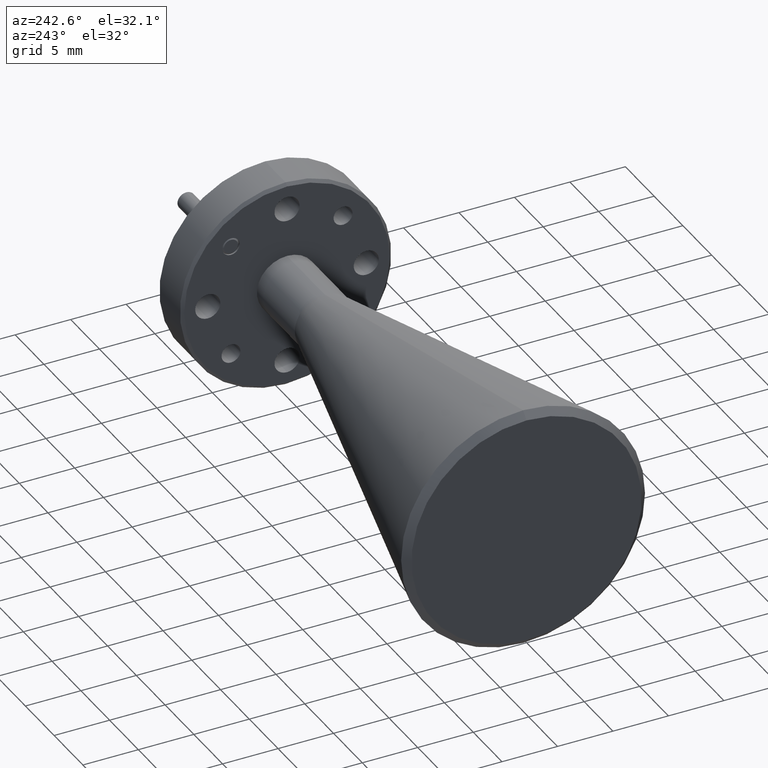
[diagram: clean part render]
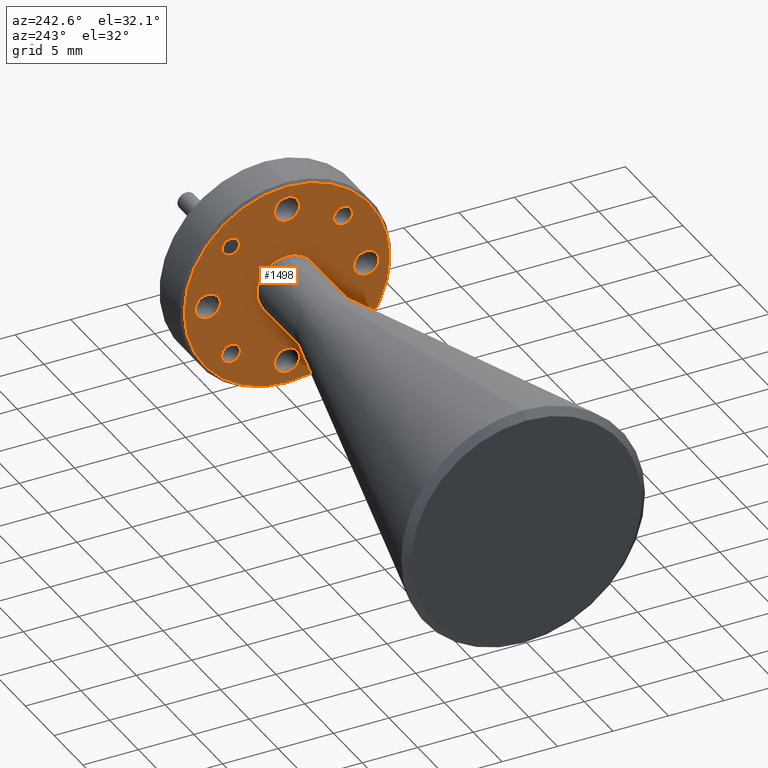
[diagram: same view with one face highlighted and labeled with its STEP entity id]
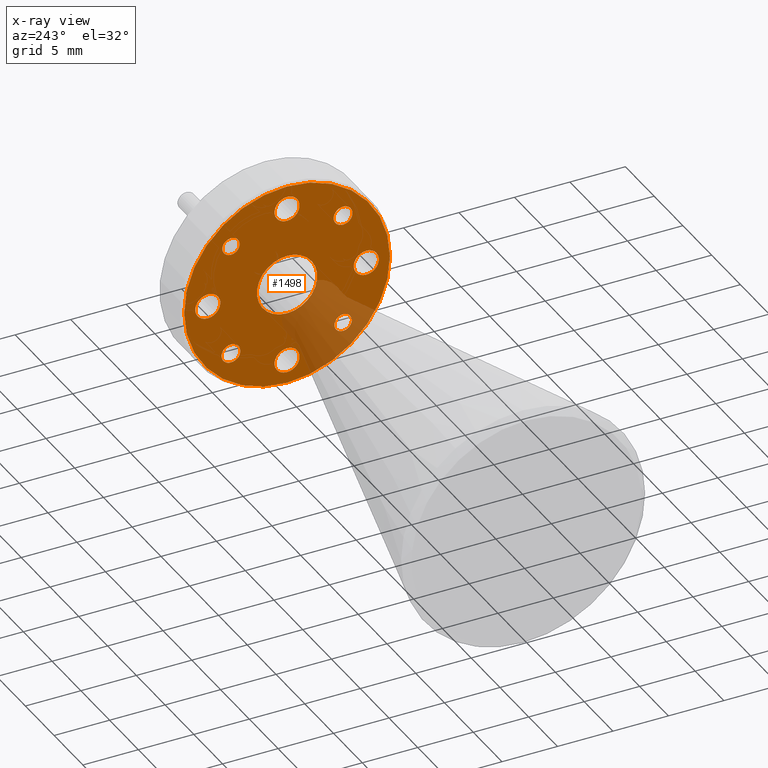
[diagram: x-ray of the same camera — body ghosted, the highlighted face saturated]
A machine part, auxiliary view. The second image highlights one B-rep face of the part: STEP entity #1498.
The next image is the same camera in x-ray: the body ghosted, the highlighted face saturated — about 17% of this face is hidden behind the body in this view.
In plain terms, the highlighted planar face has unit normal (-1, 0, 0).
Its self-contained STEP definition (entity closure, byte-faithful):
#3 = EDGE_CURVE ( 'NONE', #1685, #1463, #561, .T. ) ;
#9 = AXIS2_PLACEMENT_3D ( 'NONE', #1150, #1728, #2273 ) ;
#17 = CARTESIAN_POINT ( 'NONE',  ( -5.318961933510678364, 1.217303930725912142, 2.370213308989429724 ) ) ;
#20 = ORIENTED_EDGE ( 'NONE', *, *, #848, .T. ) ;
#30 = EDGE_LOOP ( 'NONE', ( #458, #1762 ) ) ;
#48 = DIRECTION ( 'NONE',  ( -1.000000000000000000, 0.000000000000000000, 0.000000000000000000 ) ) ;
#74 = EDGE_CURVE ( 'NONE', #1628, #499, #148, .T. ) ;
#83 = DIRECTION ( 'NONE',  ( 1.000000000000000000, -0.000000000000000000, -0.000000000000000000 ) ) ;
#113 = EDGE_LOOP ( 'NONE', ( #262, #435 ) ) ;
#123 = AXIS2_PLACEMENT_3D ( 'NONE', #2201, #739, #1451 ) ;
#128 = CARTESIAN_POINT ( 'NONE',  ( -5.318961933510678364, 1.018430148517194711, 2.202089526780714124 ) ) ;
#131 = DIRECTION ( 'NONE',  ( 1.000000000000000000, -0.000000000000000000, -0.000000000000000000 ) ) ;
#143 = CIRCLE ( 'NONE', #527, 0.03350000000000006445 ) ;
#148 = CIRCLE ( 'NONE', #450, 0.04450000000000003259 ) ;
#156 = AXIS2_PLACEMENT_3D ( 'NONE', #1923, #1741, #676 ) ;
#174 = EDGE_CURVE ( 'NONE', #682, #2107, #2193, .T. ) ;
#204 = CARTESIAN_POINT ( 'NONE',  ( -5.318961933510678364, 1.217303930725912142, 2.005213308989429510 ) ) ;
#213 = EDGE_CURVE ( 'NONE', #2230, #1565, #1737, .T. ) ;
#218 = CARTESIAN_POINT ( 'NONE',  ( -5.318961933510678364, 1.416177712934628463, 2.171339526780712958 ) ) ;
#219 = CIRCLE ( 'NONE', #156, 0.03350000000000006445 ) ;
#226 = CIRCLE ( 'NONE', #2067, 0.03074999999999966649 ) ;
#231 = DIRECTION ( 'NONE',  ( -1.000000000000000000, 0.000000000000000000, 0.000000000000000000 ) ) ;
#235 = EDGE_LOOP ( 'NONE', ( #1033, #1044 ) ) ;
#241 = DIRECTION ( 'NONE',  ( 0.000000000000000000, 0.000000000000000000, 1.000000000000000000 ) ) ;
#257 = DIRECTION ( 'NONE',  ( -1.000000000000000000, 0.000000000000000000, 0.000000000000000000 ) ) ;
#262 = ORIENTED_EDGE ( 'NONE', *, *, #320, .T. ) ;
#280 = CARTESIAN_POINT ( 'NONE',  ( -5.318961933510678364, 1.498553930725912364, 2.325713308989429517 ) ) ;
#282 = DIRECTION ( 'NONE',  ( -1.000000000000000000, 0.000000000000000000, 0.000000000000000000 ) ) ;
#287 = AXIS2_PLACEMENT_3D ( 'NONE', #831, #455, #415 ) ;
#290 = EDGE_LOOP ( 'NONE', ( #1789, #761 ) ) ;
#320 = EDGE_CURVE ( 'NONE', #1463, #1685, #1584, .T. ) ;
#323 = VERTEX_POINT ( 'NONE', #886 ) ;
#326 = VERTEX_POINT ( 'NONE', #1423 ) ;
#327 = CARTESIAN_POINT ( 'NONE',  ( -5.318961933510678364, 1.416177712934629795, 2.569087091198145156 ) ) ;
#330 = AXIS2_PLACEMENT_3D ( 'NONE', #650, #231, #2249 ) ;
#373 = CARTESIAN_POINT ( 'NONE',  ( -5.318961933510678364, 1.217303930725912142, 2.606963308989429962 ) ) ;
#376 = CIRCLE ( 'NONE', #9, 0.3650000000000000466 ) ;
#406 = ORIENTED_EDGE ( 'NONE', *, *, #893, .T. ) ;
#415 = DIRECTION ( 'NONE',  ( 0.000000000000000000, 0.000000000000000000, -1.000000000000000000 ) ) ;
#427 = DIRECTION ( 'NONE',  ( 0.000000000000000000, 0.000000000000000000, -1.000000000000000000 ) ) ;
#428 = CIRCLE ( 'NONE', #2251, 0.03350000000000006445 ) ;
#435 = ORIENTED_EDGE ( 'NONE', *, *, #3, .T. ) ;
#444 = AXIS2_PLACEMENT_3D ( 'NONE', #453, #282, #620 ) ;
#450 = AXIS2_PLACEMENT_3D ( 'NONE', #1061, #1609, #1821 ) ;
#453 = CARTESIAN_POINT ( 'NONE',  ( -5.318961933510678364, 1.217303930725912142, 2.370213308989429724 ) ) ;
#455 = DIRECTION ( 'NONE',  ( 1.000000000000000000, -0.000000000000000000, -0.000000000000000000 ) ) ;
#458 = ORIENTED_EDGE ( 'NONE', *, *, #1110, .F. ) ;
#467 = CARTESIAN_POINT ( 'NONE',  ( -5.318961933510678364, 1.018430148517196043, 2.569087091198146489 ) ) ;
#470 = CIRCLE ( 'NONE', #904, 0.04450000000000003259 ) ;
#477 = FACE_BOUND ( 'NONE', #906, .T. ) ;
#499 = VERTEX_POINT ( 'NONE', #1277 ) ;
#504 = CARTESIAN_POINT ( 'NONE',  ( -5.318961933510678364, 1.498553930725912364, 2.370213308989429724 ) ) ;
#510 = CARTESIAN_POINT ( 'NONE',  ( -5.318961933510678364, 1.592303930725912142, 2.370213308989429724 ) ) ;
#522 = DIRECTION ( 'NONE',  ( 0.000000000000000000, 0.000000000000000000, 1.000000000000000000 ) ) ;
#527 = AXIS2_PLACEMENT_3D ( 'NONE', #467, #632, #241 ) ;
#561 = CIRCLE ( 'NONE', #2016, 0.04450000000000003259 ) ;
#569 = CARTESIAN_POINT ( 'NONE',  ( -5.318961933510678364, 1.217303930725912142, 2.370213308989429724 ) ) ;
#583 = ORIENTED_EDGE ( 'NONE', *, *, #1755, .F. ) ;
#585 = VERTEX_POINT ( 'NONE', #2075 ) ;
#615 = VERTEX_POINT ( 'NONE', #1857 ) ;
#616 = AXIS2_PLACEMENT_3D ( 'NONE', #1630, #1116, #1473 ) ;
#620 = DIRECTION ( 'NONE',  ( 0.000000000000000000, 0.000000000000000000, 1.000000000000000000 ) ) ;
#632 = DIRECTION ( 'NONE',  ( -1.000000000000000000, 0.000000000000000000, 0.000000000000000000 ) ) ;
#650 = CARTESIAN_POINT ( 'NONE',  ( -5.318961933510678364, 1.018430148517194711, 2.171339526780714291 ) ) ;
#662 = CIRCLE ( 'NONE', #616, 0.04450000000000003259 ) ;
#673 = FACE_BOUND ( 'NONE', #1905, .T. ) ;
#676 = DIRECTION ( 'NONE',  ( 0.000000000000000000, 0.000000000000000000, 1.000000000000000000 ) ) ;
#682 = VERTEX_POINT ( 'NONE', #128 ) ;
#706 = AXIS2_PLACEMENT_3D ( 'NONE', #327, #1070, #1792 ) ;
#725 = CARTESIAN_POINT ( 'NONE',  ( -5.318961933510678364, 1.498553930725912364, 2.414713308989429930 ) ) ;
#739 = DIRECTION ( 'NONE',  ( -1.000000000000000000, 0.000000000000000000, 0.000000000000000000 ) ) ;
#761 = ORIENTED_EDGE ( 'NONE', *, *, #1235, .T. ) ;
#776 = ORIENTED_EDGE ( 'NONE', *, *, #174, .F. ) ;
#796 = VERTEX_POINT ( 'NONE', #1253 ) ;
#798 = VERTEX_POINT ( 'NONE', #1989 ) ;
#809 = VERTEX_POINT ( 'NONE', #2343 ) ;
#828 = FACE_BOUND ( 'NONE', #290, .T. ) ;
#830 = DIRECTION ( 'NONE',  ( 0.000000000000000000, 0.000000000000000000, -1.000000000000000000 ) ) ;
#831 = CARTESIAN_POINT ( 'NONE',  ( -5.318961933510678364, 1.217303930725912142, 2.651463308989429724 ) ) ;
#844 = EDGE_CURVE ( 'NONE', #1879, #796, #1927, .T. ) ;
#848 = EDGE_CURVE ( 'NONE', #1565, #2230, #470, .T. ) ;
#852 = EDGE_CURVE ( 'NONE', #323, #798, #2214, .T. ) ;
#860 = DIRECTION ( 'NONE',  ( 0.000000000000000000, 0.000000000000000000, -1.000000000000000000 ) ) ;
#880 = DIRECTION ( 'NONE',  ( -1.000000000000000000, 0.000000000000000000, 0.000000000000000000 ) ) ;
#886 = CARTESIAN_POINT ( 'NONE',  ( -5.318961933510678364, 1.416177712934628463, 2.204839526780713044 ) ) ;
#893 = EDGE_CURVE ( 'NONE', #1259, #2205, #376, .T. ) ;
#904 = AXIS2_PLACEMENT_3D ( 'NONE', #1305, #2237, #830 ) ;
#906 = EDGE_LOOP ( 'NONE', ( #1717, #20 ) ) ;
#922 = DIRECTION ( 'NONE',  ( 1.000000000000000000, -0.000000000000000000, -0.000000000000000000 ) ) ;
#938 = ORIENTED_EDGE ( 'NONE', *, *, #1866, .T. ) ;
#952 = DIRECTION ( 'NONE',  ( 0.000000000000000000, 0.000000000000000000, -1.000000000000000000 ) ) ;
#966 = CARTESIAN_POINT ( 'NONE',  ( -5.318961933510678364, 1.217303930725912142, 2.695963308989429930 ) ) ;
#998 = DIRECTION ( 'NONE',  ( 0.000000000000000000, 0.000000000000000000, -1.000000000000000000 ) ) ;
#1033 = ORIENTED_EDGE ( 'NONE', *, *, #1680, .F. ) ;
#1036 = FACE_OUTER_BOUND ( 'NONE', #1106, .T. ) ;
#1042 = EDGE_LOOP ( 'NONE', ( #2294, #583 ) ) ;
#1044 = ORIENTED_EDGE ( 'NONE', *, *, #1933, .F. ) ;
#1056 = FACE_BOUND ( 'NONE', #30, .T. ) ;
#1061 = CARTESIAN_POINT ( 'NONE',  ( -5.318961933510678364, 0.9360539307259121422, 2.370213308989429724 ) ) ;
#1070 = DIRECTION ( 'NONE',  ( -1.000000000000000000, 0.000000000000000000, 0.000000000000000000 ) ) ;
#1090 = DIRECTION ( 'NONE',  ( -1.000000000000000000, 0.000000000000000000, 0.000000000000000000 ) ) ;
#1093 = AXIS2_PLACEMENT_3D ( 'NONE', #218, #257, #1548 ) ;
#1106 = EDGE_LOOP ( 'NONE', ( #406, #1695 ) ) ;
#1110 = EDGE_CURVE ( 'NONE', #798, #323, #219, .T. ) ;
#1116 = DIRECTION ( 'NONE',  ( 1.000000000000000000, -0.000000000000000000, -0.000000000000000000 ) ) ;
#1118 = DIRECTION ( 'NONE',  ( 1.000000000000000000, -0.000000000000000000, -0.000000000000000000 ) ) ;
#1150 = CARTESIAN_POINT ( 'NONE',  ( -5.318961933510678364, 1.217303930725912142, 2.370213308989429724 ) ) ;
#1156 = CIRCLE ( 'NONE', #123, 0.03074999999999966649 ) ;
#1177 = AXIS2_PLACEMENT_3D ( 'NONE', #504, #131, #860 ) ;
#1194 = VERTEX_POINT ( 'NONE', #2002 ) ;
#1232 = EDGE_CURVE ( 'NONE', #326, #809, #1998, .T. ) ;
#1234 = CARTESIAN_POINT ( 'NONE',  ( -5.318961933510678364, 1.018430148517196043, 2.569087091198146489 ) ) ;
#1235 = EDGE_CURVE ( 'NONE', #796, #1879, #662, .T. ) ;
#1240 = DIRECTION ( 'NONE',  ( 0.000000000000000000, 0.000000000000000000, 1.000000000000000000 ) ) ;
#1253 = CARTESIAN_POINT ( 'NONE',  ( -5.318961933510678364, 1.217303930725912142, 2.133463308989429486 ) ) ;
#1259 = VERTEX_POINT ( 'NONE', #204 ) ;
#1277 = CARTESIAN_POINT ( 'NONE',  ( -5.318961933510678364, 0.9360539307259121422, 2.325713308989429517 ) ) ;
#1301 = CARTESIAN_POINT ( 'NONE',  ( -5.318961933510678364, 1.217303930725912142, 2.735213308989429937 ) ) ;
#1305 = CARTESIAN_POINT ( 'NONE',  ( -5.318961933510678364, 1.217303930725912142, 2.651463308989429724 ) ) ;
#1310 = EDGE_LOOP ( 'NONE', ( #1635, #776 ) ) ;
#1364 = VERTEX_POINT ( 'NONE', #2210 ) ;
#1418 = FACE_BOUND ( 'NONE', #1042, .T. ) ;
#1423 = CARTESIAN_POINT ( 'NONE',  ( -5.318961933510678364, 1.217303930725912142, 2.263213308989429962 ) ) ;
#1432 = CARTESIAN_POINT ( 'NONE',  ( -5.318961933510678364, 0.9360539307259121422, 2.414713308989429930 ) ) ;
#1438 = DIRECTION ( 'NONE',  ( 0.000000000000000000, 0.000000000000000000, -1.000000000000000000 ) ) ;
#1451 = DIRECTION ( 'NONE',  ( 0.000000000000000000, 0.000000000000000000, 1.000000000000000000 ) ) ;
#1463 = VERTEX_POINT ( 'NONE', #280 ) ;
#1470 = CIRCLE ( 'NONE', #444, 0.3650000000000000466 ) ;
#1473 = DIRECTION ( 'NONE',  ( 0.000000000000000000, 0.000000000000000000, -1.000000000000000000 ) ) ;
#1476 = CARTESIAN_POINT ( 'NONE',  ( -5.318961933510678364, 1.217303930725912142, 2.044463308989429517 ) ) ;
#1488 = AXIS2_PLACEMENT_3D ( 'NONE', #1520, #83, #998 ) ;
#1498 = ADVANCED_FACE ( 'NONE', ( #1036, #1056, #1418, #2146, #1959, #1578, #477, #1735, #828, #673 ), #1556, .T. ) ;
#1520 = CARTESIAN_POINT ( 'NONE',  ( -5.318961933510678364, 1.217303930725912142, 2.088963308989429724 ) ) ;
#1548 = DIRECTION ( 'NONE',  ( 0.000000000000000000, 0.000000000000000000, 1.000000000000000000 ) ) ;
#1556 = PLANE ( 'NONE',  #1836 ) ;
#1565 = VERTEX_POINT ( 'NONE', #966 ) ;
#1575 = EDGE_CURVE ( 'NONE', #2107, #682, #226, .T. ) ;
#1578 = FACE_BOUND ( 'NONE', #113, .T. ) ;
#1584 = CIRCLE ( 'NONE', #1177, 0.04450000000000003259 ) ;
#1604 = CIRCLE ( 'NONE', #706, 0.03074999999999966649 ) ;
#1609 = DIRECTION ( 'NONE',  ( 1.000000000000000000, -0.000000000000000000, -0.000000000000000000 ) ) ;
#1628 = VERTEX_POINT ( 'NONE', #1432 ) ;
#1630 = CARTESIAN_POINT ( 'NONE',  ( -5.318961933510678364, 1.217303930725912142, 2.088963308989429724 ) ) ;
#1635 = ORIENTED_EDGE ( 'NONE', *, *, #1575, .F. ) ;
#1665 = CARTESIAN_POINT ( 'NONE',  ( -5.318961933510678364, 1.018430148517194711, 2.171339526780714291 ) ) ;
#1680 = EDGE_CURVE ( 'NONE', #1194, #615, #1604, .T. ) ;
#1685 = VERTEX_POINT ( 'NONE', #725 ) ;
#1695 = ORIENTED_EDGE ( 'NONE', *, *, #2115, .T. ) ;
#1702 = DIRECTION ( 'NONE',  ( 1.000000000000000000, -0.000000000000000000, -0.000000000000000000 ) ) ;
#1717 = ORIENTED_EDGE ( 'NONE', *, *, #213, .T. ) ;
#1728 = DIRECTION ( 'NONE',  ( -1.000000000000000000, 0.000000000000000000, 0.000000000000000000 ) ) ;
#1734 = ORIENTED_EDGE ( 'NONE', *, *, #1232, .T. ) ;
#1735 = FACE_BOUND ( 'NONE', #2069, .T. ) ;
#1737 = CIRCLE ( 'NONE', #287, 0.04450000000000003259 ) ;
#1741 = DIRECTION ( 'NONE',  ( -1.000000000000000000, 0.000000000000000000, 0.000000000000000000 ) ) ;
#1755 = EDGE_CURVE ( 'NONE', #585, #1364, #428, .T. ) ;
#1756 = DIRECTION ( 'NONE',  ( 1.000000000000000000, -0.000000000000000000, -0.000000000000000000 ) ) ;
#1762 = ORIENTED_EDGE ( 'NONE', *, *, #852, .F. ) ;
#1789 = ORIENTED_EDGE ( 'NONE', *, *, #844, .T. ) ;
#1792 = DIRECTION ( 'NONE',  ( 0.000000000000000000, 0.000000000000000000, 1.000000000000000000 ) ) ;
#1808 = AXIS2_PLACEMENT_3D ( 'NONE', #569, #1118, #952 ) ;
#1811 = DIRECTION ( 'NONE',  ( 0.000000000000000000, 0.000000000000000000, 1.000000000000000000 ) ) ;
#1821 = DIRECTION ( 'NONE',  ( 0.000000000000000000, 0.000000000000000000, -1.000000000000000000 ) ) ;
#1823 = AXIS2_PLACEMENT_3D ( 'NONE', #1909, #1702, #427 ) ;
#1836 = AXIS2_PLACEMENT_3D ( 'NONE', #510, #880, #1240 ) ;
#1857 = CARTESIAN_POINT ( 'NONE',  ( -5.318961933510678364, 1.416177712934629795, 2.599837091198144989 ) ) ;
#1866 = EDGE_CURVE ( 'NONE', #809, #326, #2030, .T. ) ;
#1879 = VERTEX_POINT ( 'NONE', #1476 ) ;
#1905 = EDGE_LOOP ( 'NONE', ( #1734, #938 ) ) ;
#1909 = CARTESIAN_POINT ( 'NONE',  ( -5.318961933510678364, 0.9360539307259121422, 2.370213308989429724 ) ) ;
#1923 = CARTESIAN_POINT ( 'NONE',  ( -5.318961933510678364, 1.416177712934628463, 2.171339526780712958 ) ) ;
#1927 = CIRCLE ( 'NONE', #1488, 0.04450000000000003259 ) ;
#1933 = EDGE_CURVE ( 'NONE', #615, #1194, #1156, .T. ) ;
#1952 = CARTESIAN_POINT ( 'NONE',  ( -5.318961933510678364, 1.498553930725912364, 2.370213308989429724 ) ) ;
#1959 = FACE_BOUND ( 'NONE', #1310, .T. ) ;
#1989 = CARTESIAN_POINT ( 'NONE',  ( -5.318961933510678364, 1.416177712934628463, 2.137839526780712873 ) ) ;
#1998 = CIRCLE ( 'NONE', #2106, 0.1069999999999999840 ) ;
#2002 = CARTESIAN_POINT ( 'NONE',  ( -5.318961933510678364, 1.416177712934629795, 2.538337091198145323 ) ) ;
#2010 = EDGE_CURVE ( 'NONE', #499, #1628, #2194, .T. ) ;
#2016 = AXIS2_PLACEMENT_3D ( 'NONE', #1952, #1756, #1438 ) ;
#2030 = CIRCLE ( 'NONE', #1808, 0.1069999999999999840 ) ;
#2067 = AXIS2_PLACEMENT_3D ( 'NONE', #1665, #48, #522 ) ;
#2069 = EDGE_LOOP ( 'NONE', ( #2233, #2315 ) ) ;
#2075 = CARTESIAN_POINT ( 'NONE',  ( -5.318961933510678364, 1.018430148517196043, 2.602587091198146574 ) ) ;
#2081 = EDGE_CURVE ( 'NONE', #1364, #585, #143, .T. ) ;
#2106 = AXIS2_PLACEMENT_3D ( 'NONE', #17, #922, #2190 ) ;
#2107 = VERTEX_POINT ( 'NONE', #2247 ) ;
#2115 = EDGE_CURVE ( 'NONE', #2205, #1259, #1470, .T. ) ;
#2146 = FACE_BOUND ( 'NONE', #235, .T. ) ;
#2190 = DIRECTION ( 'NONE',  ( 0.000000000000000000, 0.000000000000000000, -1.000000000000000000 ) ) ;
#2193 = CIRCLE ( 'NONE', #330, 0.03074999999999966649 ) ;
#2194 = CIRCLE ( 'NONE', #1823, 0.04450000000000003259 ) ;
#2201 = CARTESIAN_POINT ( 'NONE',  ( -5.318961933510678364, 1.416177712934629795, 2.569087091198145156 ) ) ;
#2205 = VERTEX_POINT ( 'NONE', #1301 ) ;
#2210 = CARTESIAN_POINT ( 'NONE',  ( -5.318961933510678364, 1.018430148517196043, 2.535587091198146403 ) ) ;
#2214 = CIRCLE ( 'NONE', #1093, 0.03350000000000006445 ) ;
#2230 = VERTEX_POINT ( 'NONE', #373 ) ;
#2233 = ORIENTED_EDGE ( 'NONE', *, *, #2010, .T. ) ;
#2237 = DIRECTION ( 'NONE',  ( 1.000000000000000000, -0.000000000000000000, -0.000000000000000000 ) ) ;
#2247 = CARTESIAN_POINT ( 'NONE',  ( -5.318961933510678364, 1.018430148517194711, 2.140589526780714458 ) ) ;
#2249 = DIRECTION ( 'NONE',  ( 0.000000000000000000, 0.000000000000000000, 1.000000000000000000 ) ) ;
#2251 = AXIS2_PLACEMENT_3D ( 'NONE', #1234, #1090, #1811 ) ;
#2273 = DIRECTION ( 'NONE',  ( 0.000000000000000000, 0.000000000000000000, 1.000000000000000000 ) ) ;
#2294 = ORIENTED_EDGE ( 'NONE', *, *, #2081, .F. ) ;
#2315 = ORIENTED_EDGE ( 'NONE', *, *, #74, .T. ) ;
#2343 = CARTESIAN_POINT ( 'NONE',  ( -5.318961933510678364, 1.217303930725912142, 2.477213308989429486 ) ) ;